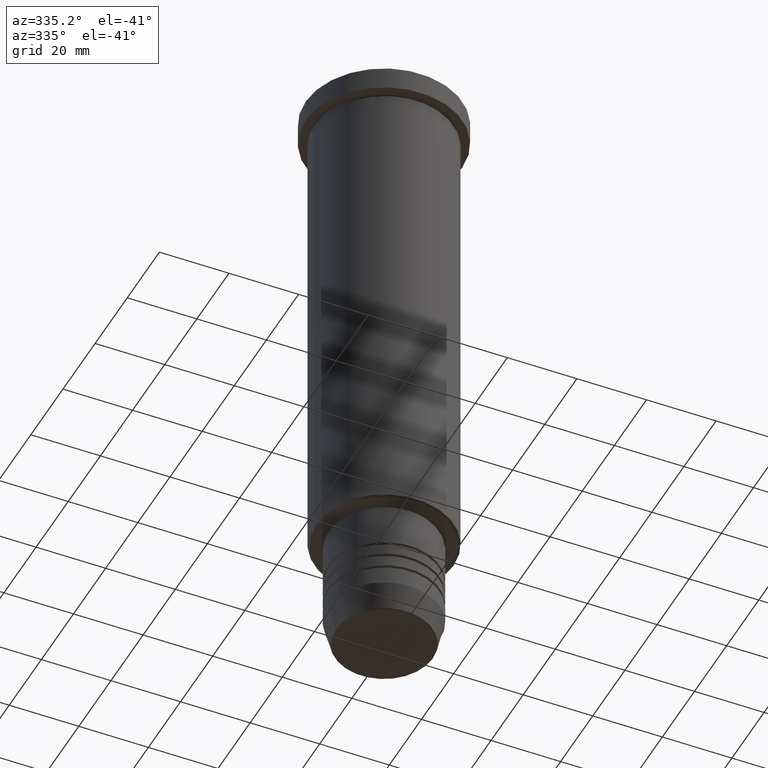
[diagram: clean part render]
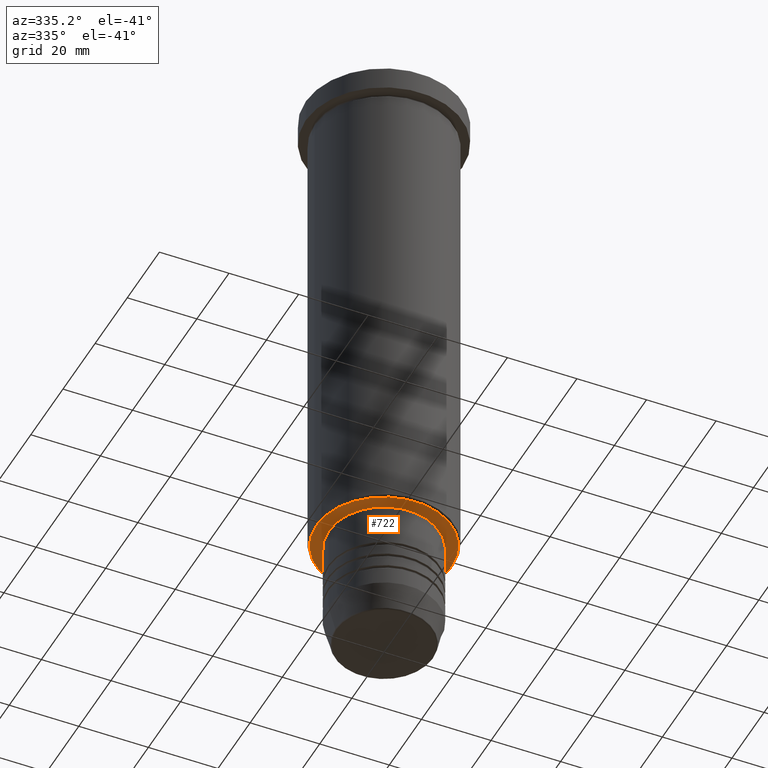
[diagram: same view with one face highlighted and labeled with its STEP entity id]
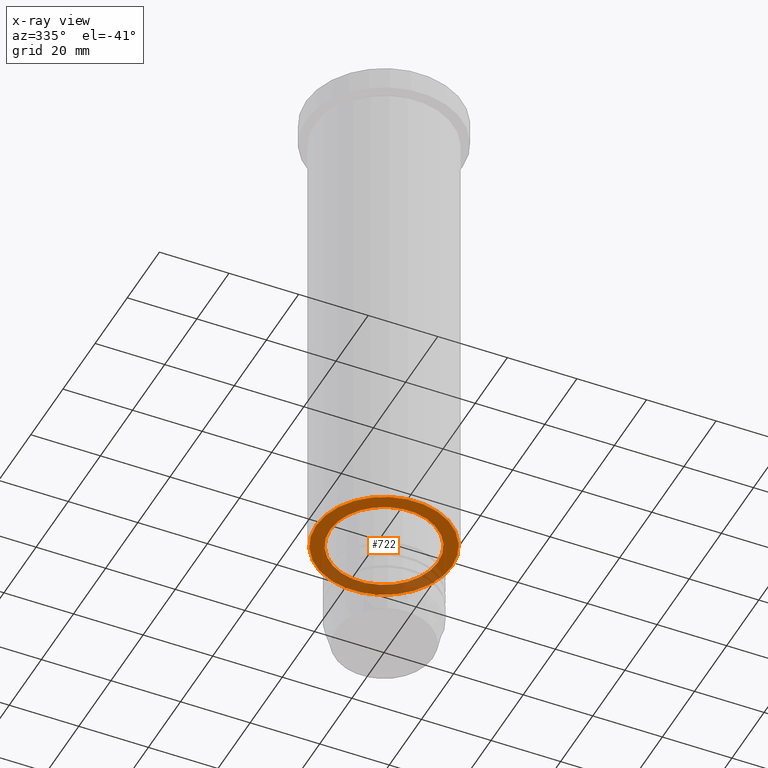
[diagram: x-ray of the same camera — body ghosted, the highlighted face saturated]
A machine part, auxiliary view. The second image highlights one B-rep face of the part: STEP entity #722.
The next image is the same camera in x-ray: the body ghosted, the highlighted face saturated — about 31% of this face is hidden behind the body in this view.
In plain terms, the highlighted planar face has unit normal (0, 0, -1).
Its self-contained STEP definition (entity closure, byte-faithful):
#1 = AXIS2_PLACEMENT_3D ( 'NONE', #600, #705, #159 ) ;
#19 = VERTEX_POINT ( 'NONE', #52 ) ;
#45 = CARTESIAN_POINT ( 'NONE',  ( 0.000000000000000000, 0.000000000000000000, -146.0000000000000000 ) ) ;
#52 = CARTESIAN_POINT ( 'NONE',  ( 15.50000000000000000, 0.000000000000000000, -146.0000000000000000 ) ) ;
#81 = DIRECTION ( 'NONE',  ( -0.000000000000000000, -0.000000000000000000, 1.000000000000000000 ) ) ;
#89 = AXIS2_PLACEMENT_3D ( 'NONE', #458, #748, #877 ) ;
#155 = EDGE_LOOP ( 'NONE', ( #193, #712 ) ) ;
#159 = DIRECTION ( 'NONE',  ( -1.000000000000000000, 0.000000000000000000, -0.000000000000000000 ) ) ;
#166 = DIRECTION ( 'NONE',  ( 0.000000000000000000, 0.000000000000000000, -1.000000000000000000 ) ) ;
#193 = ORIENTED_EDGE ( 'NONE', *, *, #1119, .T. ) ;
#251 = CARTESIAN_POINT ( 'NONE',  ( -15.50000000000000000, 1.898202538678397557E-15, -146.0000000000000000 ) ) ;
#340 = AXIS2_PLACEMENT_3D ( 'NONE', #954, #166, #1052 ) ;
#362 = VERTEX_POINT ( 'NONE', #536 ) ;
#429 = FACE_BOUND ( 'NONE', #155, .T. ) ;
#458 = CARTESIAN_POINT ( 'NONE',  ( 0.000000000000000000, 0.000000000000000000, -146.0000000000000000 ) ) ;
#479 = CIRCLE ( 'NONE', #89, 15.50000000000000000 ) ;
#530 = PLANE ( 'NONE',  #1 ) ;
#536 = CARTESIAN_POINT ( 'NONE',  ( 19.50000000000001776, 0.000000000000000000, -146.0000000000000000 ) ) ;
#540 = CIRCLE ( 'NONE', #340, 19.50000000000001776 ) ;
#557 = CIRCLE ( 'NONE', #819, 19.50000000000001776 ) ;
#600 = CARTESIAN_POINT ( 'NONE',  ( 0.000000000000000000, 20.00000000000000355, -146.0000000000000000 ) ) ;
#643 = EDGE_CURVE ( 'NONE', #1013, #19, #479, .T. ) ;
#662 = CARTESIAN_POINT ( 'NONE',  ( -19.50000000000001776, 2.418677428316023909E-15, -146.0000000000000000 ) ) ;
#705 = DIRECTION ( 'NONE',  ( 0.000000000000000000, 0.000000000000000000, -1.000000000000000000 ) ) ;
#706 = EDGE_LOOP ( 'NONE', ( #1151, #889 ) ) ;
#712 = ORIENTED_EDGE ( 'NONE', *, *, #643, .T. ) ;
#722 = ADVANCED_FACE ( 'NONE', ( #1057, #429 ), #530, .T. ) ;
#728 = EDGE_CURVE ( 'NONE', #362, #942, #540, .T. ) ;
#731 = CARTESIAN_POINT ( 'NONE',  ( 0.000000000000000000, 0.000000000000000000, -146.0000000000000000 ) ) ;
#748 = DIRECTION ( 'NONE',  ( -0.000000000000000000, -0.000000000000000000, 1.000000000000000000 ) ) ;
#790 = DIRECTION ( 'NONE',  ( -1.000000000000000000, 0.000000000000000000, 0.000000000000000000 ) ) ;
#819 = AXIS2_PLACEMENT_3D ( 'NONE', #45, #958, #790 ) ;
#877 = DIRECTION ( 'NONE',  ( 1.000000000000000000, 0.000000000000000000, 0.000000000000000000 ) ) ;
#889 = ORIENTED_EDGE ( 'NONE', *, *, #1089, .T. ) ;
#942 = VERTEX_POINT ( 'NONE', #662 ) ;
#954 = CARTESIAN_POINT ( 'NONE',  ( 0.000000000000000000, 0.000000000000000000, -146.0000000000000000 ) ) ;
#958 = DIRECTION ( 'NONE',  ( 0.000000000000000000, 0.000000000000000000, -1.000000000000000000 ) ) ;
#1013 = VERTEX_POINT ( 'NONE', #251 ) ;
#1052 = DIRECTION ( 'NONE',  ( -1.000000000000000000, 0.000000000000000000, 0.000000000000000000 ) ) ;
#1057 = FACE_OUTER_BOUND ( 'NONE', #706, .T. ) ;
#1065 = AXIS2_PLACEMENT_3D ( 'NONE', #731, #81, #1095 ) ;
#1066 = CIRCLE ( 'NONE', #1065, 15.50000000000000000 ) ;
#1089 = EDGE_CURVE ( 'NONE', #942, #362, #557, .T. ) ;
#1095 = DIRECTION ( 'NONE',  ( 1.000000000000000000, 0.000000000000000000, 0.000000000000000000 ) ) ;
#1119 = EDGE_CURVE ( 'NONE', #19, #1013, #1066, .T. ) ;
#1151 = ORIENTED_EDGE ( 'NONE', *, *, #728, .T. ) ;